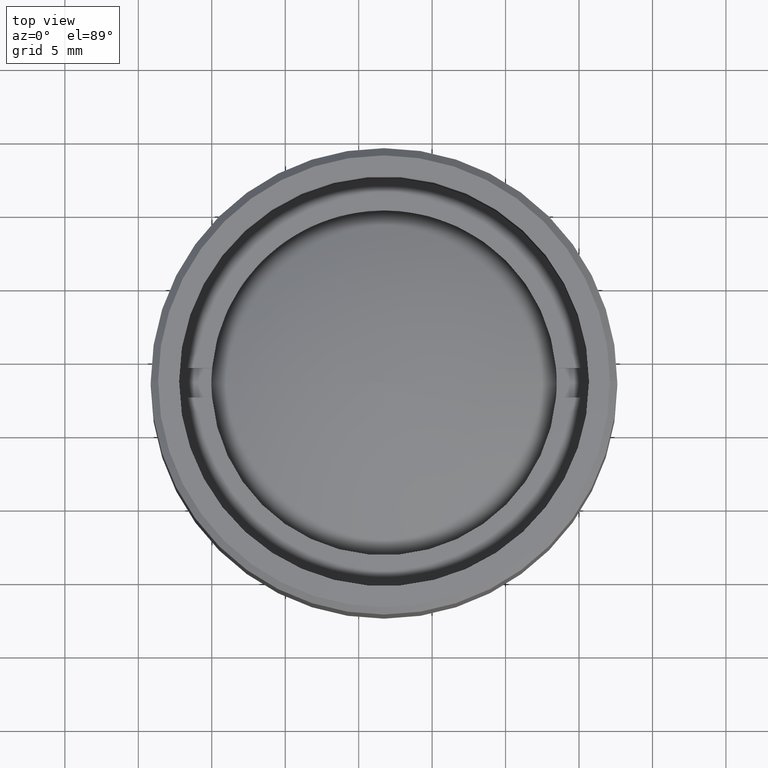
[diagram: clean part render]
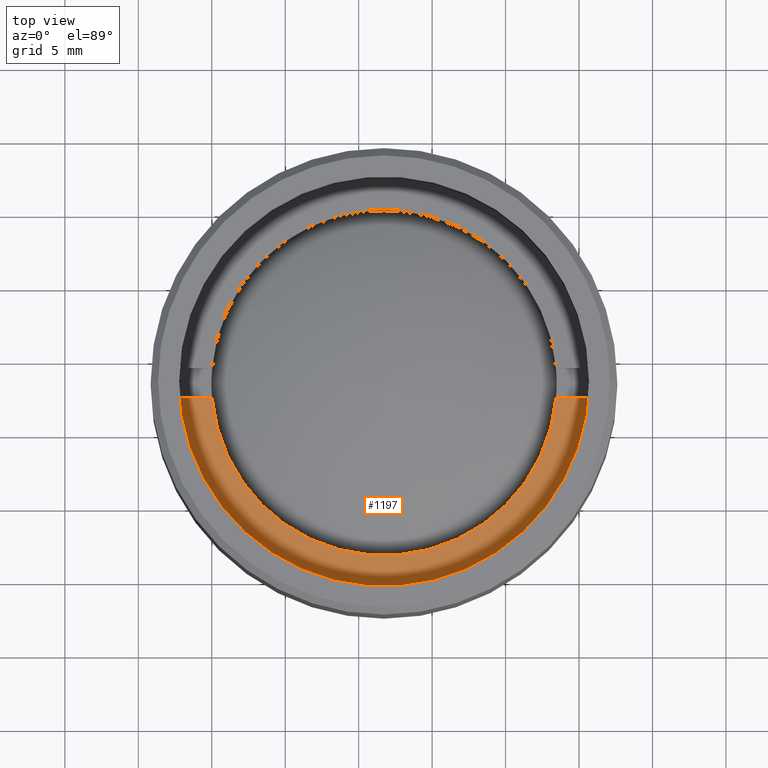
[diagram: same view with one face highlighted and labeled with its STEP entity id]
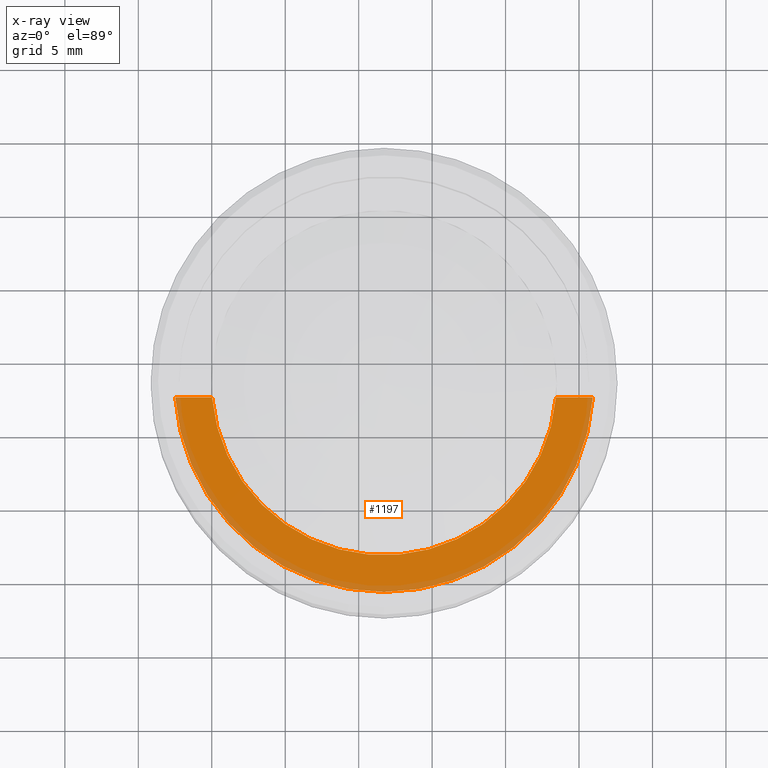
[diagram: x-ray of the same camera — body ghosted, the highlighted face saturated]
A machine part, top view. The second image highlights one B-rep face of the part: STEP entity #1197.
The next image is the same camera in x-ray: the body ghosted, the highlighted face saturated — about 16% of this face is hidden behind the body in this view.
In plain terms, the highlighted planar face has unit normal (0, 0, 1).
Its self-contained STEP definition (entity closure, byte-faithful):
#1 = CARTESIAN_POINT ( 'NONE',  ( -30.62185530834360492, -1.000000000000000000, 2.500000000000000000 ) ) ;
#16 = CIRCLE ( 'NONE', #977, 11.75000000000000178 ) ;
#75 = PLANE ( 'NONE',  #1526 ) ;
#181 = CARTESIAN_POINT ( 'NONE',  ( -30.62185530834360492, -1.000000000000000000, 2.500000000000000000 ) ) ;
#212 = CARTESIAN_POINT ( 'NONE',  ( -14.21486897582949993, -1.000000000000000000, 2.500000000000000000 ) ) ;
#214 = DIRECTION ( 'NONE',  ( 0.000000000000000000, 0.000000000000000000, 1.000000000000000000 ) ) ;
#230 = DIRECTION ( 'NONE',  ( 1.000000000000000000, 0.000000000000000000, 0.000000000000000000 ) ) ;
#258 = VECTOR ( 'NONE', #472, 1000.000000000000000 ) ;
#291 = VERTEX_POINT ( 'NONE', #212 ) ;
#368 = FACE_OUTER_BOUND ( 'NONE', #1446, .T. ) ;
#384 = VERTEX_POINT ( 'NONE', #1074 ) ;
#426 = EDGE_CURVE ( 'NONE', #291, #384, #1178, .T. ) ;
#472 = DIRECTION ( 'NONE',  ( 1.000000000000000000, 0.000000000000000000, 0.000000000000000000 ) ) ;
#479 = DIRECTION ( 'NONE',  ( 0.000000000000000000, 0.000000000000000000, 1.000000000000000000 ) ) ;
#490 = CIRCLE ( 'NONE', #1578, 14.25000000000000000 ) ;
#551 = VERTEX_POINT ( 'NONE', #591 ) ;
#571 = ORIENTED_EDGE ( 'NONE', *, *, #1348, .F. ) ;
#591 = CARTESIAN_POINT ( 'NONE',  ( 11.70736947396809668, -1.000000000000000000, 2.500000000000000000 ) ) ;
#592 = ORIENTED_EDGE ( 'NONE', *, *, #1358, .T. ) ;
#595 = CARTESIAN_POINT ( 'NONE',  ( 14.21486897582949993, -1.000000000000000000, 2.500000000000000000 ) ) ;
#613 = DIRECTION ( 'NONE',  ( 0.000000000000000000, 0.000000000000000000, 1.000000000000000000 ) ) ;
#636 = DIRECTION ( 'NONE',  ( 1.000000000000000000, 0.000000000000000000, -0.000000000000000000 ) ) ;
#647 = ORIENTED_EDGE ( 'NONE', *, *, #426, .F. ) ;
#742 = LINE ( 'NONE', #181, #258 ) ;
#872 = CARTESIAN_POINT ( 'NONE',  ( 0.000000000000000000, 0.000000000000000000, 2.500000000000000000 ) ) ;
#977 = AXIS2_PLACEMENT_3D ( 'NONE', #1411, #214, #230 ) ;
#1005 = VECTOR ( 'NONE', #1690, 1000.000000000000000 ) ;
#1074 = CARTESIAN_POINT ( 'NONE',  ( -11.70736947396809668, -1.000000000000000000, 2.500000000000000000 ) ) ;
#1178 = LINE ( 'NONE', #1, #1005 ) ;
#1197 = ADVANCED_FACE ( 'NONE', ( #368 ), #75, .T. ) ;
#1244 = DIRECTION ( 'NONE',  ( 1.000000000000000000, 0.000000000000000000, 0.000000000000000000 ) ) ;
#1250 = EDGE_CURVE ( 'NONE', #384, #551, #16, .T. ) ;
#1348 = EDGE_CURVE ( 'NONE', #551, #1378, #742, .T. ) ;
#1358 = EDGE_CURVE ( 'NONE', #291, #1378, #490, .T. ) ;
#1378 = VERTEX_POINT ( 'NONE', #595 ) ;
#1411 = CARTESIAN_POINT ( 'NONE',  ( 0.000000000000000000, 0.000000000000000000, 2.500000000000000000 ) ) ;
#1446 = EDGE_LOOP ( 'NONE', ( #647, #592, #571, #1534 ) ) ;
#1526 = AXIS2_PLACEMENT_3D ( 'NONE', #872, #613, #636 ) ;
#1534 = ORIENTED_EDGE ( 'NONE', *, *, #1250, .F. ) ;
#1578 = AXIS2_PLACEMENT_3D ( 'NONE', #1638, #479, #1244 ) ;
#1638 = CARTESIAN_POINT ( 'NONE',  ( 0.000000000000000000, 0.000000000000000000, 2.500000000000000000 ) ) ;
#1690 = DIRECTION ( 'NONE',  ( 1.000000000000000000, 0.000000000000000000, 0.000000000000000000 ) ) ;